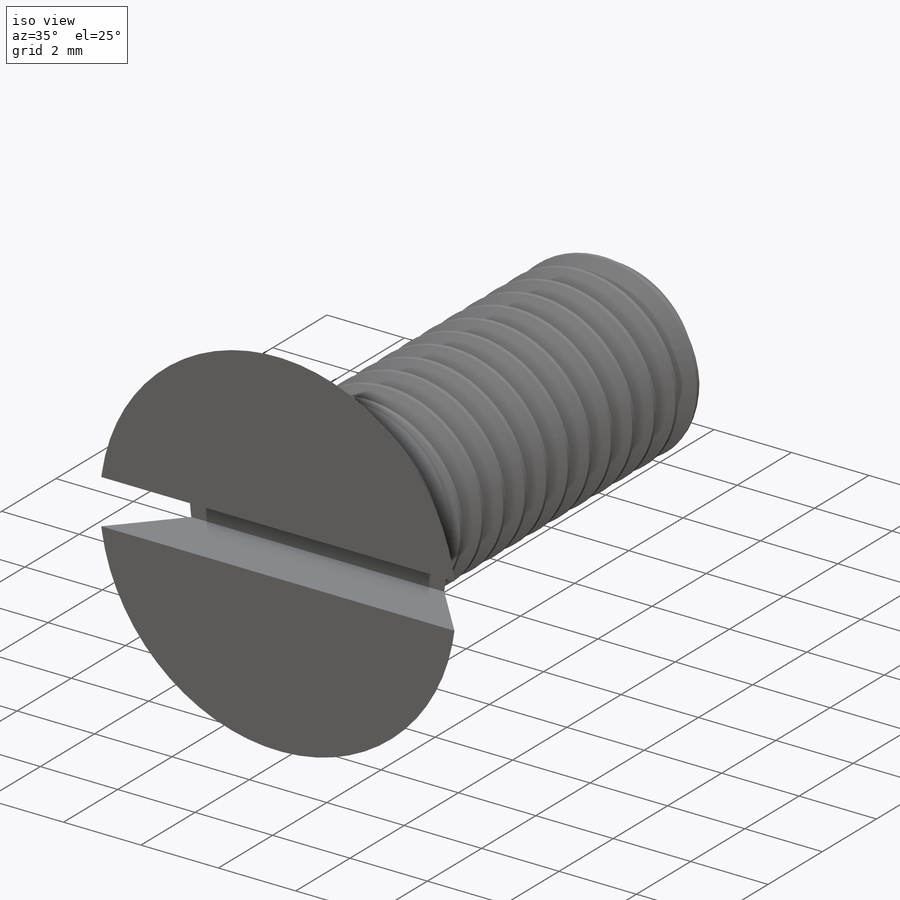
[diagram: iso view]
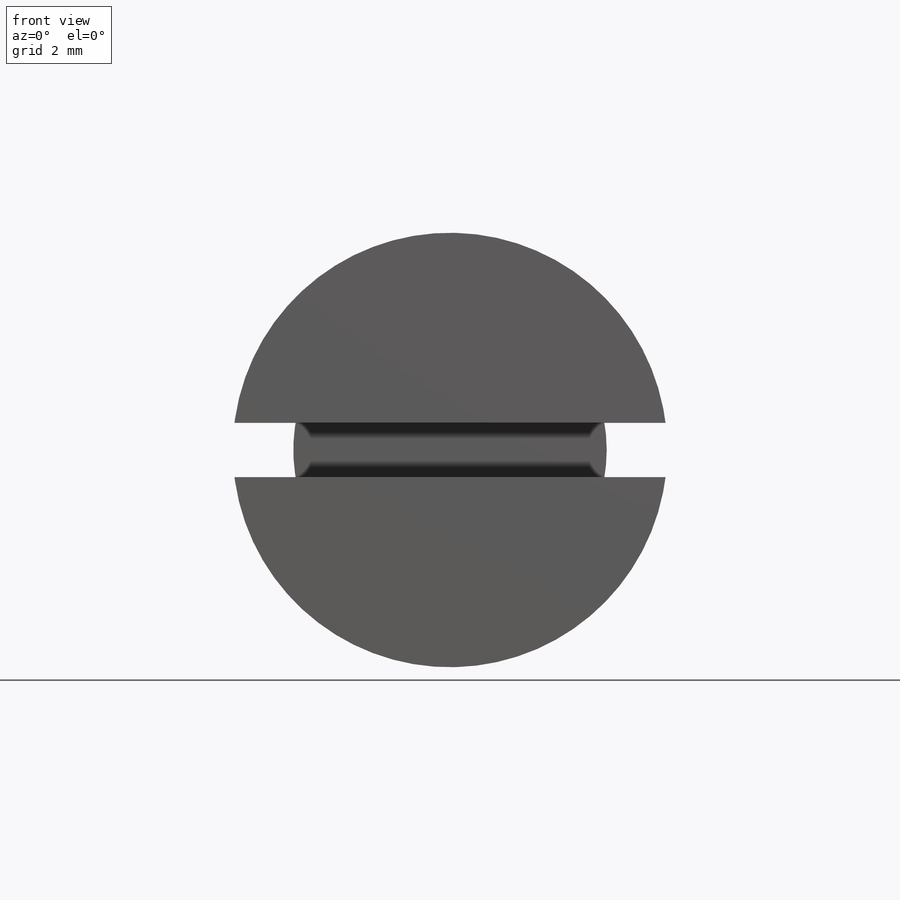
[diagram: front view]
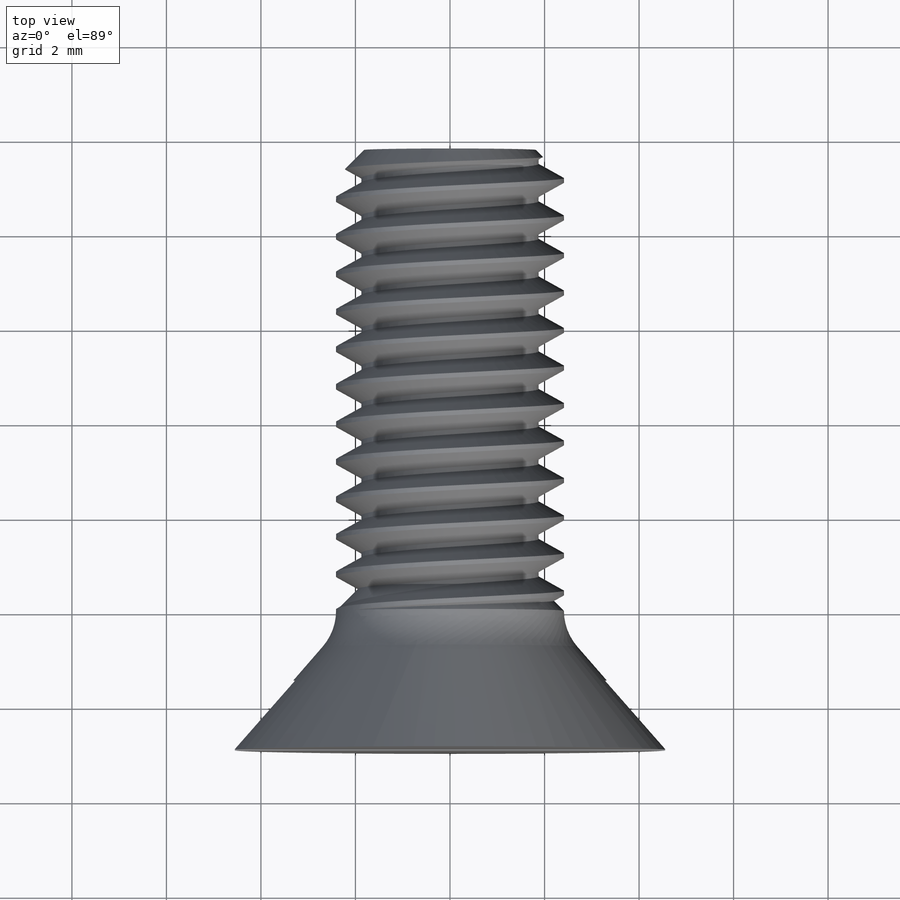
[diagram: top view]
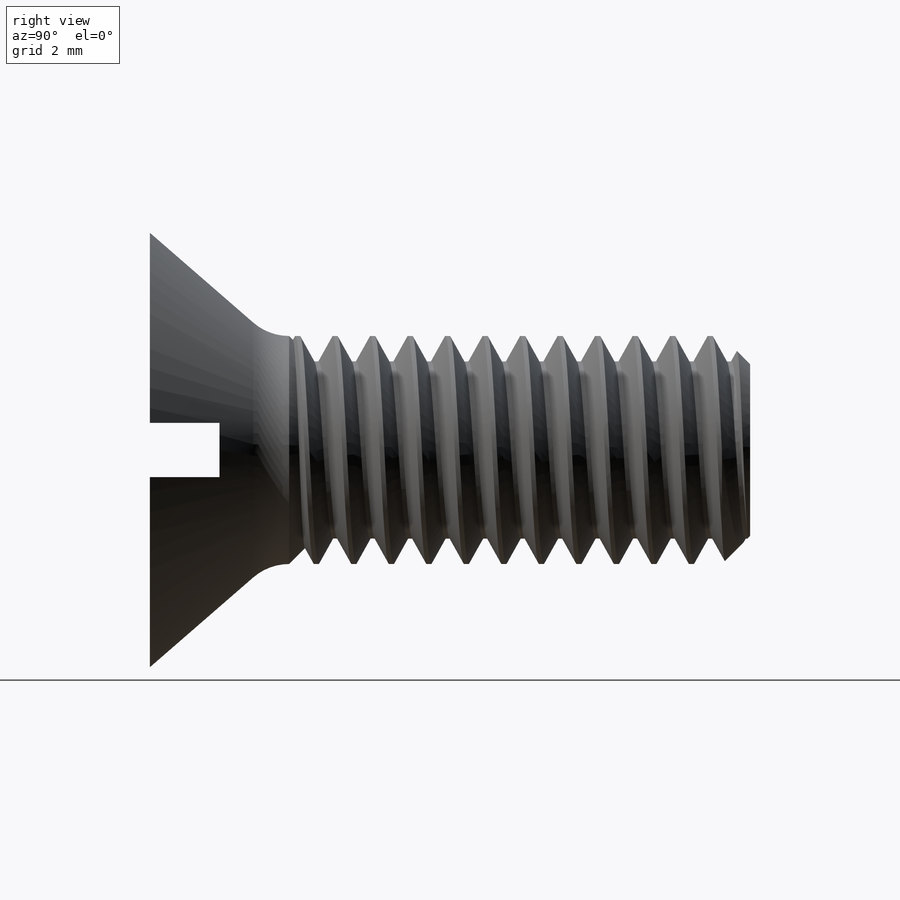
[diagram: right view]
SOLIDWORKS PART (.sldprt)
format: sldprt  version: not decoded by parser v0  size: 1,115,648 bytes
history: native  units: mm
features: sketch x13, extrude x4, revolve x3, material x1, cut_revolve x1, chamfer x1, helix x1, sweep x1, boolean_combine x1, plane x1, cut_extrude x1 (+16 scaffold rows collapsed; 2 parser-record rows omitted)
feature tree (46):
  scaffold x16  (default folders/planes/origin — collapsed)
  material  "Material <not specified>"
  sketch  "Sketch1"  dims[Washer OD=8.3312mm Head Dia=9.1948mm Hex=6.35mm]
  extrude  "Extrude3"  Depth=2.9464mm Head Ht=2.9464mm
  sketch  "Sketch4"  dims[c1.Screw Dia=9.525mm c1.Screw Length=12.7mm c1.Drill Length=~7.14375mm c1.D1=~1.417672mm c2.D1=45.0deg c2.Body Length=44.958mm c2.Screw Length=12.7mm c3.Screw Length=25.4mm c3.D1=90.0deg c4.Screw Length=50.8mm c4.Length=~39.600133mm c4.dia=4.826mm c4.length=50.8mm c5.length=6.35mm c6.length=12.7mm]
  revolve  "Revolve1"  Angle=360deg
  sketch  "Sketch11"  dims[c1.D1=0.254mm c1.D2=~1.642533mm c1.D3=~1.947333mm c2.D2=~1.66218mm c3.D2=5.0deg c3.D1=~3.294374mm c4.D1=82.0deg]
  cut_revolve  "Cut-Revolve3"  Angle=360deg
  chamfer  "Chamfer1"  Distance=0.595313mm Angle=45deg
  sketch  "Sketch13"  dims[D1=0.0mm]
  helix  "Helix/Spiral1"  Pitch=12.7mm
  sketch  "Sketch14"  dims[c1.D1=~0.099219mm c1.D2=~2.089547mm c2.D2=58.0deg c2.D3=~0.396875mm]
  sweep  "Sweep1"
  boolean_combine  "Combine1"
  parser-record x2  (decoder bookkeeping rows leaked as tree rows — omitted from the tree; the rows remain in map.json)
  sketch  "Sketch28"
  extrude  "Extrude10"  [1 undecoded]
  sketch  "Sketch31"
  revolve  "Revolve2"  Angle=360deg
  plane  "Plane1"  Offset=38.1mm
  sketch  "Sketch22"
  sketch  "Sketch29"
  extrude  "Extrude11"  [1 undecoded]
  sketch  "Sketch32"
  revolve  "Revolve3"  Angle=360deg
  sketch  "Sketch26"  dims[D1=2.413mm]
  extrude  "Extrude8"  [1 undecoded]
  sketch  "Sketch30"  dims[D1=~1.14935mm]
  cut_extrude  "Extrude12"  Depth=1.4732mm
  sketch  "Sketch18"
decode coverage: 15 of 26 modeling features carry decoded parameters
note: ~ marks probable driven/reference dimensions
note: 3 parameter values undecoded
summary: no parameter record found for 3 features
note: suppression state not decoded; provenance and decode notes live in map.json
